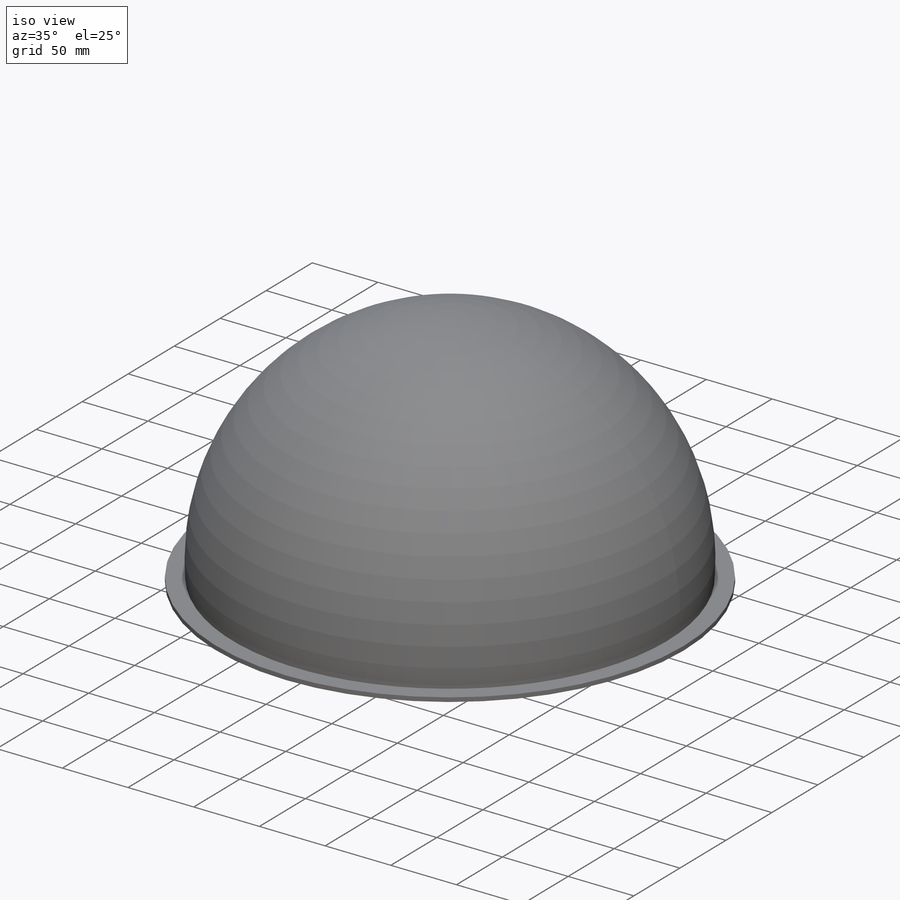
[diagram: iso view]
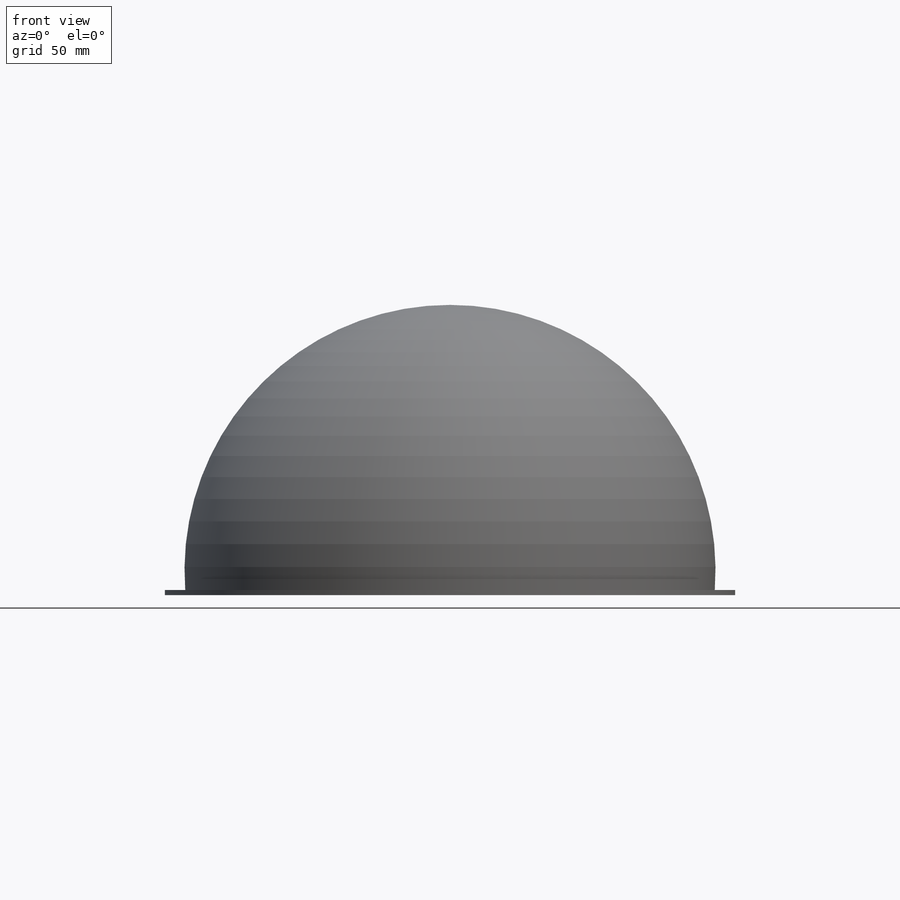
[diagram: front view]
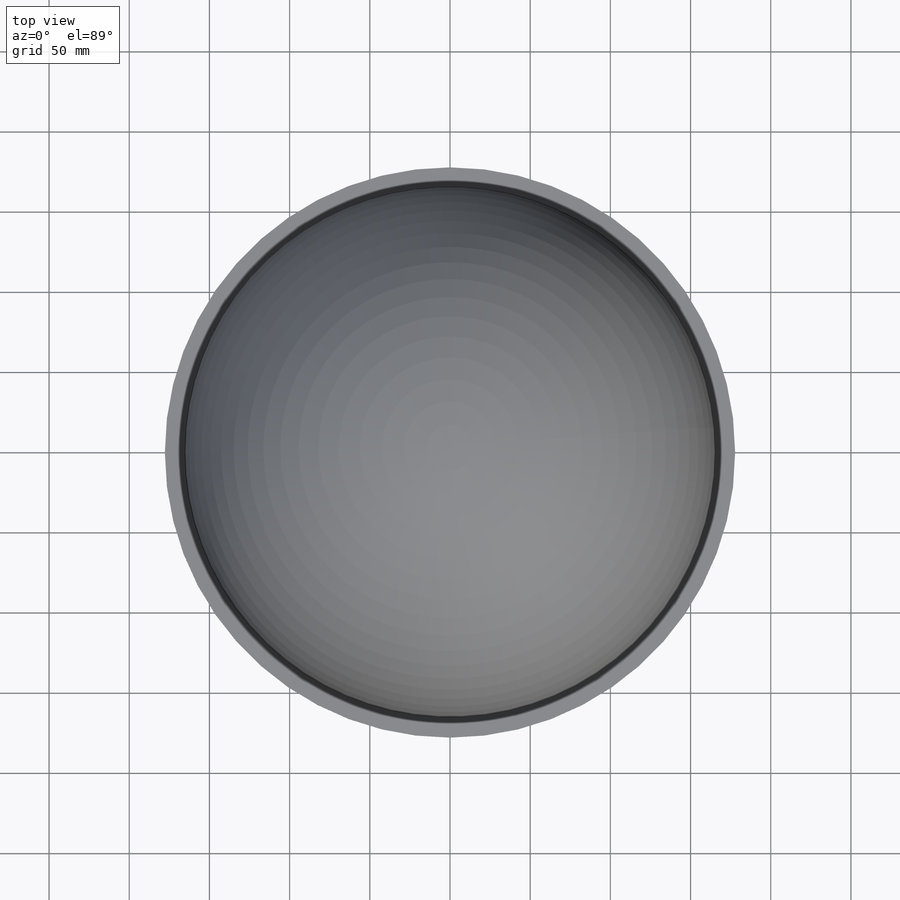
[diagram: top view]
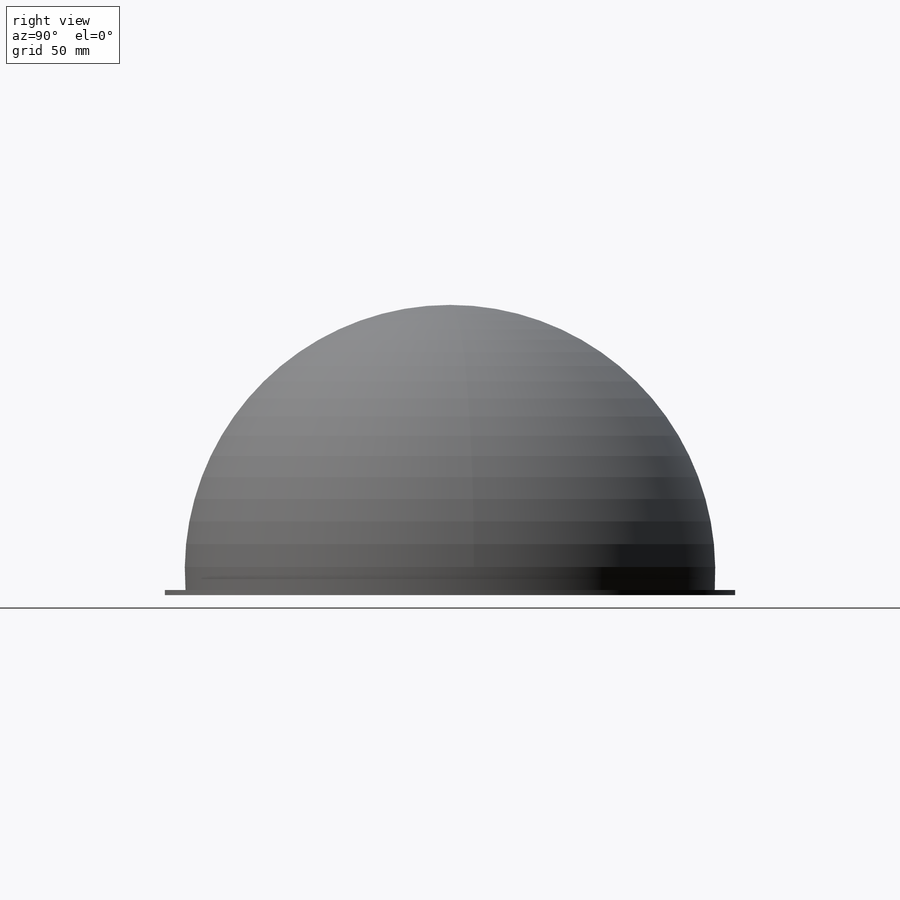
[diagram: right view]
SOLIDWORKS PART (.sldprt)
format: sldprt  version: not decoded by parser v0  size: 187,904 bytes
history: native  units: mm
features: sketch x2, material x1, revolve x1, extrude x1, shell x1 (+12 scaffold rows collapsed)
feature tree (18):
  scaffold x12  (default folders/planes/origin — collapsed)
  material  "Acrylic (Medium-high impact)"
  sketch  "Sketch1"  dims[D1=177.8mm D2=165.1mm]
  revolve  "Revolve1"  Angle=360deg
  sketch  "Sketch3"  dims[D1=355.6mm]
  extrude  "Boss-Extrude1"  Depth=3.175mm
  shell  "Shell1"  Thickness=3.175mm
decode coverage: 5 of 5 modeling features carry decoded parameters
note: suppression state not decoded; provenance and decode notes live in map.json
